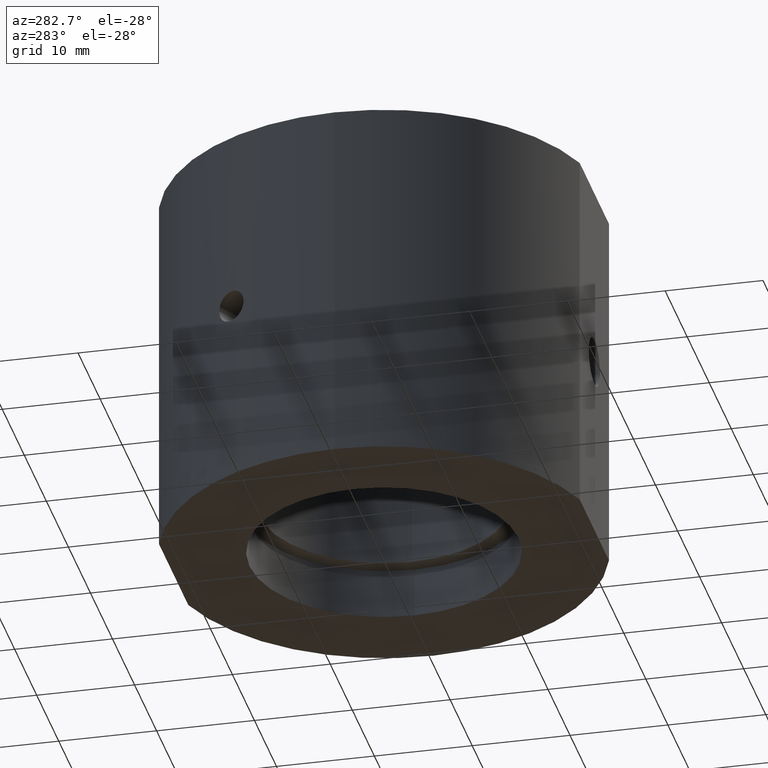
[diagram: clean part render]
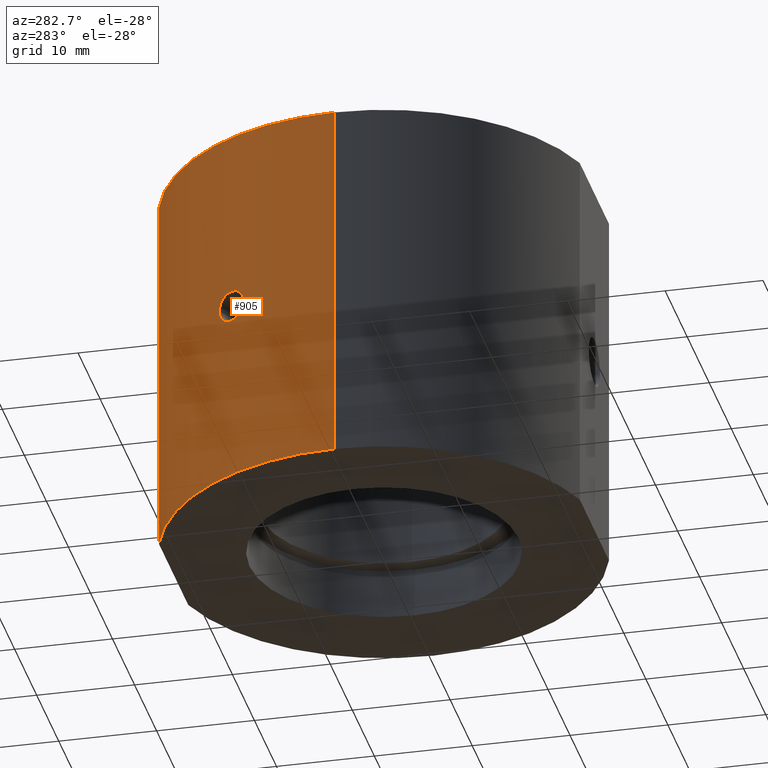
[diagram: same view with one face highlighted and labeled with its STEP entity id]
A machine part, auxiliary view. The second image highlights one B-rep face of the part: STEP entity #905.
In plain terms, the highlighted cylindrical surface (partial cylindrical patch) has radius 22.5 mm, axis along (-0, -0, -1).
Its self-contained STEP definition (entity closure, byte-faithful):
#5 = CARTESIAN_POINT ( 'NONE',  ( -19.21486011188203900, 11.70679890416977600, -1.565974926310363100 ) ) ;
#9 = CARTESIAN_POINT ( 'NONE',  ( -18.60810641662824200, 12.64865113707539600, 2.020667263024862200E-016 ) ) ;
#30 = CIRCLE ( 'NONE', #1106, 22.49999999999999600 ) ;
#35 = EDGE_CURVE ( 'NONE', #566, #80, #998, .T. ) ;
#41 = EDGE_LOOP ( 'NONE', ( #954, #854, #374, #958 ) ) ;
#80 = VERTEX_POINT ( 'NONE', #1085 ) ;
#94 = CARTESIAN_POINT ( 'NONE',  ( -22.49999999999998900, 0.0000000000000000000, 19.00000000000000000 ) ) ;
#97 = CARTESIAN_POINT ( 'NONE',  ( -18.60810641662824200, 12.64865113707539600, 2.020667263024862200E-016 ) ) ;
#102 = CARTESIAN_POINT ( 'NONE',  ( -20.00768950323507400, 10.29311306632212500, 1.243597569724808300 ) ) ;
#120 = CARTESIAN_POINT ( 'NONE',  ( -20.10861962241924100, 10.09440518437753900, -1.005981911973166600 ) ) ;
#142 = CARTESIAN_POINT ( 'NONE',  ( -20.23508979026608800, 9.838271354648599100, -0.4272369033474204800 ) ) ;
#187 = DIRECTION ( 'NONE',  ( -1.224646799147350500E-016, -0.0000000000000000000, -1.000000000000000000 ) ) ;
#199 = CARTESIAN_POINT ( 'NONE',  ( -19.21371282972924300, 11.70868071741904600, 1.565221042383195400 ) ) ;
#211 = CARTESIAN_POINT ( 'NONE',  ( -18.63257669664227100, 12.61284551964113700, 0.4324585402576656100 ) ) ;
#216 = CARTESIAN_POINT ( 'NONE',  ( -19.84083197290810200, 10.61138046964287100, 1.483341811114539800 ) ) ;
#233 = CARTESIAN_POINT ( 'NONE',  ( -19.37667444682860200, 11.43703148816601200, -1.639300148209344300 ) ) ;
#234 = CARTESIAN_POINT ( 'NONE',  ( -18.83413387902964000, 12.30980716680219300, -1.089943829978075000 ) ) ;
#238 = CARTESIAN_POINT ( 'NONE',  ( -18.65546112740138100, 12.57877149691223700, -0.5314702050519237700 ) ) ;
#260 = CARTESIAN_POINT ( 'NONE',  ( -20.25810641662825200, 9.790767304586767100, 0.0000000000000000000 ) ) ;
#283 = VECTOR ( 'NONE', #347, 1000.000000000000000 ) ;
#308 = CARTESIAN_POINT ( 'NONE',  ( -20.25810641662825200, 9.790767304586767100, 0.0000000000000000000 ) ) ;
#315 = CARTESIAN_POINT ( 'NONE',  ( -18.60810641662824200, 12.64865113707539600, 0.2153612982077321200 ) ) ;
#319 = CARTESIAN_POINT ( 'NONE',  ( -18.79271128675920000, 12.37364815511228500, 1.013701896851200200 ) ) ;
#326 = CARTESIAN_POINT ( 'NONE',  ( -20.25810641662825200, 9.790767304586767100, 0.2180671979923886100 ) ) ;
#340 = CARTESIAN_POINT ( 'NONE',  ( -19.05886919334701100, 11.95899275397388100, -1.431620527020551500 ) ) ;
#341 = CARTESIAN_POINT ( 'NONE',  ( -18.79657013430146200, 12.36699372930535500, -1.006534927037097100 ) ) ;
#347 = DIRECTION ( 'NONE',  ( -1.224646799147350500E-016, -0.0000000000000000000, -1.000000000000000000 ) ) ;
#349 = CARTESIAN_POINT ( 'NONE',  ( -18.63793209717590600, 12.60467907797121800, -0.4286018244349828500 ) ) ;
#370 = CARTESIAN_POINT ( 'NONE',  ( -20.25810641662825200, 9.790767304586767100, -0.1090587332655390400 ) ) ;
#374 = ORIENTED_EDGE ( 'NONE', *, *, #1084, .T. ) ;
#413 = DIRECTION ( 'NONE',  ( -1.000000000000000000, 0.0000000000000000000, 1.541976423090495100E-016 ) ) ;
#429 = CARTESIAN_POINT ( 'NONE',  ( -19.10906443453927700, 11.87870452879390500, 1.482324220416194400 ) ) ;
#455 = CARTESIAN_POINT ( 'NONE',  ( -19.69928013699295700, 10.87326164905924000, -1.606581491676226200 ) ) ;
#456 = CARTESIAN_POINT ( 'NONE',  ( -18.70173569627144200, 12.50986827246084900, -0.7313887006983256200 ) ) ;
#491 = VERTEX_POINT ( 'NONE', #94 ) ;
#521 = CARTESIAN_POINT ( 'NONE',  ( -18.60810641662824200, 12.64865113707539600, 2.020667263024862200E-016 ) ) ;
#540 = AXIS2_PLACEMENT_3D ( 'NONE', #846, #949, #653 ) ;
#541 = CARTESIAN_POINT ( 'NONE',  ( -19.37619183932969600, 11.43784563228304500, 1.639150382823930400 ) ) ;
#559 = CARTESIAN_POINT ( 'NONE',  ( -19.59352181747923500, 11.06301336427406500, -1.649922622886370600 ) ) ;
#561 = FACE_BOUND ( 'NONE', #1376, .T. ) ;
#563 = CARTESIAN_POINT ( 'NONE',  ( -20.18462480212213000, 9.941460935254912800, -0.7318718721764833100 ) ) ;
#566 = VERTEX_POINT ( 'NONE', #521 ) ;
#635 = DIRECTION ( 'NONE',  ( -1.000000000000000000, 0.0000000000000000000, 1.541976423090495400E-016 ) ) ;
#637 = CARTESIAN_POINT ( 'NONE',  ( -20.11166152774219300, 10.08931781684726100, 1.015440336546108200 ) ) ;
#653 = DIRECTION ( 'NONE',  ( -1.000000000000000000, 0.0000000000000000000, 0.0000000000000000000 ) ) ;
#659 = CARTESIAN_POINT ( 'NONE',  ( -19.69811034423323500, 10.87540731472498700, 1.607441041680910400 ) ) ;
#669 = CARTESIAN_POINT ( 'NONE',  ( -6.633249580710826300, 21.49999999999999300, -31.93906810035839800 ) ) ;
#677 = CARTESIAN_POINT ( 'NONE',  ( -20.07725214420228000, 10.15675903091386400, -1.090865916825009700 ) ) ;
#680 = VERTEX_POINT ( 'NONE', #1012 ) ;
#682 = CARTESIAN_POINT ( 'NONE',  ( -20.16216375849959200, 9.987029173932423700, -0.8266368506187228300 ) ) ;
#685 = CIRCLE ( 'NONE', #858, 22.50000000000000000 ) ;
#712 = FACE_OUTER_BOUND ( 'NONE', #41, .T. ) ;
#724 = EDGE_CURVE ( 'NONE', #491, #794, #1387, .T. ) ;
#785 = CARTESIAN_POINT ( 'NONE',  ( -22.50000000000000000, 0.0000000000000000000, -18.99999999999999600 ) ) ;
#794 = VERTEX_POINT ( 'NONE', #785 ) ;
#800 = CARTESIAN_POINT ( 'NONE',  ( -6.633249580710781000, 21.50000000000000000, 18.99999999999999600 ) ) ;
#829 = CYLINDRICAL_SURFACE ( 'NONE', #540, 22.50000000000000000 ) ;
#830 = ORIENTED_EDGE ( 'NONE', *, *, #859, .T. ) ;
#846 = CARTESIAN_POINT ( 'NONE',  ( 0.0000000000000000000, 0.0000000000000000000, -31.93906810035839800 ) ) ;
#850 = CARTESIAN_POINT ( 'NONE',  ( -19.59381990642731000, 11.06253398261653900, 1.650174374395405400 ) ) ;
#854 = ORIENTED_EDGE ( 'NONE', *, *, #1247, .T. ) ;
#858 = AXIS2_PLACEMENT_3D ( 'NONE', #967, #187, #413 ) ;
#859 = EDGE_CURVE ( 'NONE', #80, #566, #1118, .T. ) ;
#861 = CARTESIAN_POINT ( 'NONE',  ( -19.43045358545735000, 11.34545427137672900, 1.649912014729170200 ) ) ;
#867 = DIRECTION ( 'NONE',  ( -1.224646799147350500E-016, -0.0000000000000000000, -1.000000000000000000 ) ) ;
#870 = CARTESIAN_POINT ( 'NONE',  ( -20.16630116360724000, 9.978834015259582900, 0.8315909376945378500 ) ) ;
#878 = VERTEX_POINT ( 'NONE', #800 ) ;
#888 = CARTESIAN_POINT ( 'NONE',  ( -19.26822083744343700, 11.61881524249318800, -1.597151308643783000 ) ) ;
#892 = CARTESIAN_POINT ( 'NONE',  ( -18.91810326811241400, 12.18036617651954300, -1.243967150874422100 ) ) ;
#905 = ADVANCED_FACE ( 'NONE', ( #712, #561 ), #829, .T. ) ;
#926 = DIRECTION ( 'NONE',  ( -1.224646799147350500E-016, -0.0000000000000000000, -1.000000000000000000 ) ) ;
#948 = VECTOR ( 'NONE', #867, 1000.000000000000000 ) ;
#949 = DIRECTION ( 'NONE',  ( -1.224646799147350500E-016, -0.0000000000000000000, -1.000000000000000000 ) ) ;
#954 = ORIENTED_EDGE ( 'NONE', *, *, #724, .F. ) ;
#958 = ORIENTED_EDGE ( 'NONE', *, *, #1249, .F. ) ;
#967 = CARTESIAN_POINT ( 'NONE',  ( 1.584578833305349900E-015, 0.0000000000000000000, -19.00000000000000000 ) ) ;
#973 = CARTESIAN_POINT ( 'NONE',  ( -18.72443553671950100, 12.47606910408178700, 0.8296025954351883300 ) ) ;
#980 = CARTESIAN_POINT ( 'NONE',  ( -20.23906661269737500, 9.830412685752678600, 0.4347098583132135700 ) ) ;
#996 = CARTESIAN_POINT ( 'NONE',  ( -19.11009701581168900, 11.87704431869018500, -1.483293915646776800 ) ) ;
#998 = B_SPLINE_CURVE_WITH_KNOTS ( 'NONE', 3,
 ( #97, #315, #211, #973, #319, #1432, #1090, #1309, #429, #199, #1195, #541, #861, #850, #659, #216, #1438, #1290, #102, #637, #870, #980, #326, #308 ),
 .UNSPECIFIED., .F., .F.,
 ( 4, 2, 2, 2, 2, 2, 2, 2, 2, 2, 2, 4 ),
 ( 0.005160383223614574900, 0.005805282465315281200, 0.006450181707015987600, 0.006772631327866336800, 0.007095080948716686900, 0.007417530569567036200, 0.007739980190417385500, 0.008384879432118078800, 0.008707329052968428000, 0.009029778673818773800, 0.009674677915519468800, 0.01031957715722016400 ),
 .UNSPECIFIED. ) ;
#1012 = CARTESIAN_POINT ( 'NONE',  ( -6.633249580710800500, 21.50000000000000000, -19.00000000000000000 ) ) ;
#1019 = ORIENTED_EDGE ( 'NONE', *, *, #35, .T. ) ;
#1020 = CARTESIAN_POINT ( 'NONE',  ( -20.22117803179613900, 9.866898344264477300, -0.5320533464823935500 ) ) ;
#1084 = EDGE_CURVE ( 'NONE', #878, #680, #1245, .T. ) ;
#1085 = CARTESIAN_POINT ( 'NONE',  ( -20.25810641662825200, 9.790767304586767100, 0.0000000000000000000 ) ) ;
#1090 = CARTESIAN_POINT ( 'NONE',  ( -18.96283749481673600, 12.11069139333559400, 1.311713029802914700 ) ) ;
#1106 = AXIS2_PLACEMENT_3D ( 'NONE', #1177, #926, #635 ) ;
#1109 = CARTESIAN_POINT ( 'NONE',  ( -18.73050579597769500, 12.46682539146345700, -0.8278483551175426200 ) ) ;
#1118 = B_SPLINE_CURVE_WITH_KNOTS ( 'NONE', 3,
 ( #260, #370, #1137, #142, #1020, #563, #682, #120, #677, #1335, #1218, #455, #559, #1330, #233, #888, #5, #996, #340, #1223, #892, #234, #341, #1109, #456, #238, #349, #1225, #1336, #9 ),
 .UNSPECIFIED., .F., .F.,
 ( 4, 2, 2, 2, 2, 2, 2, 2, 2, 2, 2, 2, 2, 2, 4 ),
 ( 0.0000000000000000000, 0.0003225239514759125100, 0.0006450479029518250100, 0.0009675718544277375200, 0.001290095805903649800, 0.001935143708855471300, 0.002580191611807292700, 0.002902715563283203700, 0.003225239514759113300, 0.003547763466235023900, 0.003870287417710934000, 0.004192811369186844600, 0.004515335320662753800, 0.004837859272138664800, 0.005160383223614574900 ),
 .UNSPECIFIED. ) ;
#1137 = CARTESIAN_POINT ( 'NONE',  ( -20.25344142869103300, 9.800436335307312100, -0.2162874750742592400 ) ) ;
#1177 = CARTESIAN_POINT ( 'NONE',  ( 6.238236670065281400E-015, 0.0000000000000000000, 18.99999999999999600 ) ) ;
#1195 = CARTESIAN_POINT ( 'NONE',  ( -19.26811661407768700, 11.61898468235269300, 1.597072805409017500 ) ) ;
#1218 = CARTESIAN_POINT ( 'NONE',  ( -19.88818014593819300, 10.52377058317679800, -1.442013257166701000 ) ) ;
#1223 = CARTESIAN_POINT ( 'NONE',  ( -18.96317305376357600, 12.11016392753319300, -1.312163548273850500 ) ) ;
#1225 = CARTESIAN_POINT ( 'NONE',  ( -18.61419720343361200, 12.63970371445746100, -0.2171000533953887600 ) ) ;
#1229 = CARTESIAN_POINT ( 'NONE',  ( -22.50000000000000000, 0.0000000000000000000, -31.93906810035839800 ) ) ;
#1245 = LINE ( 'NONE', #669, #948 ) ;
#1247 = EDGE_CURVE ( 'NONE', #491, #878, #30, .T. ) ;
#1249 = EDGE_CURVE ( 'NONE', #794, #680, #685, .T. ) ;
#1290 = CARTESIAN_POINT ( 'NONE',  ( -19.96868275772032300, 10.36869133824158100, 1.313203471232427400 ) ) ;
#1309 = CARTESIAN_POINT ( 'NONE',  ( -19.05883007539622300, 11.95905715500233100, 1.431603215071192400 ) ) ;
#1330 = CARTESIAN_POINT ( 'NONE',  ( -19.43204055837166800, 11.34272410910774000, -1.650038529183569300 ) ) ;
#1335 = CARTESIAN_POINT ( 'NONE',  ( -19.97335872455489900, 10.36041369617781200, -1.319097808869332100 ) ) ;
#1336 = CARTESIAN_POINT ( 'NONE',  ( -18.60810641662823900, 12.64865113707539400, -0.1077054714931361500 ) ) ;
#1376 = EDGE_LOOP ( 'NONE', ( #830, #1019 ) ) ;
#1387 = LINE ( 'NONE', #1229, #283 ) ;
#1432 = CARTESIAN_POINT ( 'NONE',  ( -18.91697055752793600, 12.18211871839711300, 1.242018767666878800 ) ) ;
#1438 = CARTESIAN_POINT ( 'NONE',  ( -19.88534993490054200, 10.52762599605220300, 1.432719790953440800 ) ) ;